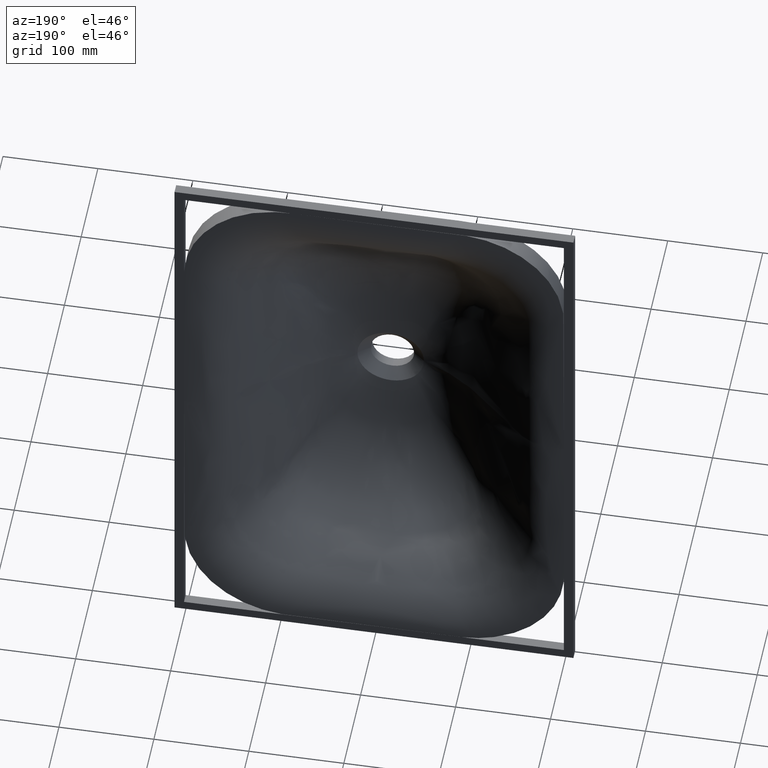
[diagram: clean part render]
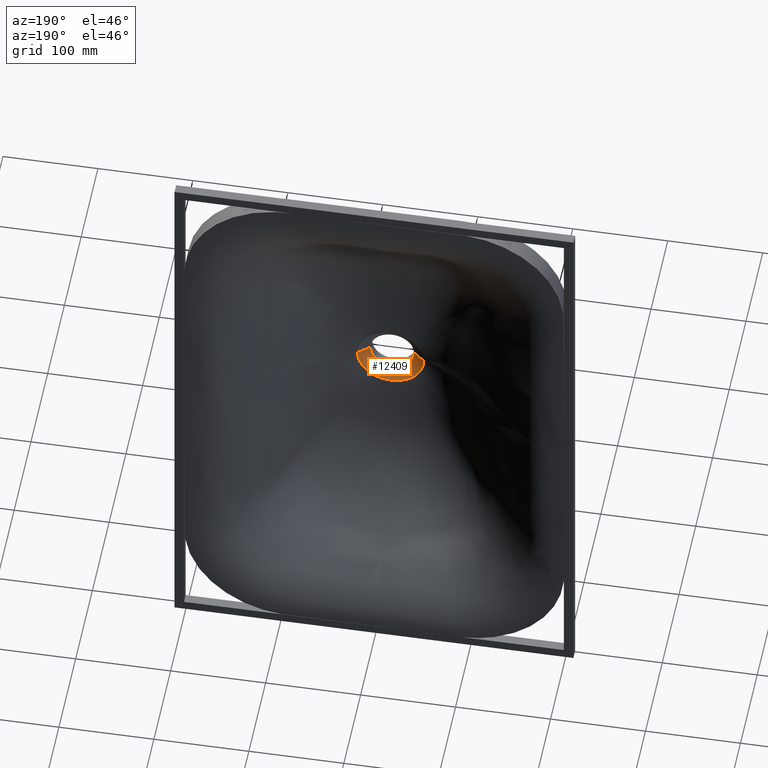
[diagram: same view with one face highlighted and labeled with its STEP entity id]
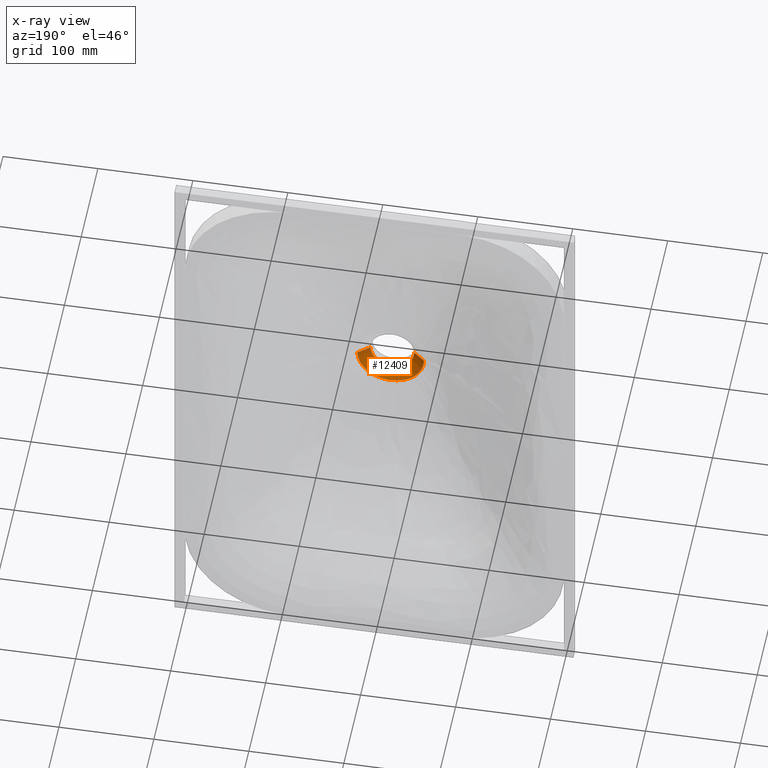
[diagram: x-ray of the same camera — body ghosted, the highlighted face saturated]
A machine part, auxiliary view. The second image highlights one B-rep face of the part: STEP entity #12409.
The next image is the same camera in x-ray: the body ghosted, the highlighted face saturated — about 0% of this face is hidden behind the body in this view.
In plain terms, the highlighted face is a freeform B-spline surface patch.
Its self-contained STEP definition (entity closure, byte-faithful):
#54 = CARTESIAN_POINT ( 'NONE',  ( -14.87605336912653100, 10.38404328497316300, -17.54556130888461900 ) ) ;
#201 = CARTESIAN_POINT ( 'NONE',  ( -35.00000000000000000, 19.99999999999999600, -1.089623183347932000E-014 ) ) ;
#610 = CARTESIAN_POINT ( 'NONE',  ( -34.92516223613242200, 19.99999999999999600, -2.329734954493456000 ) ) ;
#1048 = CARTESIAN_POINT ( 'NONE',  ( 23.05109930967709500, 20.00000000000000400, -26.45923029894232300 ) ) ;
#1116 = B_SPLINE_CURVE_WITH_KNOTS ( 'NONE', 3,
 ( #201, #8493, #3553, #3788 ),
 .UNSPECIFIED., .F., .F.,
 ( 4, 4 ),
 ( 0.0000000000000000000, 0.9600000000000019600 ),
 .UNSPECIFIED. ) ;
#1447 = B_SPLINE_CURVE_WITH_KNOTS ( 'NONE', 3,
 ( #9905, #12322, #13770, #610, #1965, #7893, #8209, #11202, #13090, #10845, #10781, #10993, #11160, #13142, #8520, #10901, #4237, #9383, #11380, #6945, #12167, #13283, #13375, #13126, #13406, #13652, #2059, #1899, #5665, #1811, #1048, #1882, #13846, #11906, #5831, #11400, #10126, #10881 ),
 .UNSPECIFIED., .F., .F.,
 ( 4, 1, 1, 1, 1, 2, 2, 1, 1, 1, 1, 2, 2, 2, 1, 2, 2, 2, 1, 1, 1, 1, 2, 2, 1, 4 ),
 ( 0.0000000000000000000, 0.005219345127828849300, 0.01043869025565769900, 0.01565803538348654900, 0.02087738051131539700, 0.1043869025565773600, 0.1197851551098226000, 0.1364424591954516700, 0.1524702375148888600, 0.1684980158343260000, 0.1806972684971683300, 0.2005535724732003000, 0.2112798522621409400, 0.2187608823973335700, 0.2500000000000004400, 0.2812391176026669000, 0.2887201477378579200, 0.2994464275268002300, 0.3193027315028322300, 0.3315019841656745000, 0.3475297624851116900, 0.3635575408045489400, 0.3802148448901762600, 0.3956130974434232100, 0.4166666666666670200, 0.5000000000000004400 ),
 .UNSPECIFIED. ) ;
#1661 = CARTESIAN_POINT ( 'NONE',  ( -1.520526338073602000, 10.40682704675463400, -23.00000000000000400 ) ) ;
#1811 = CARTESIAN_POINT ( 'NONE',  ( 20.29364273303919900, 20.00000000000000400, -28.60967737590167900 ) ) ;
#1882 = CARTESIAN_POINT ( 'NONE',  ( 24.73673486796249000, 20.00000000000000400, -24.83878249049592000 ) ) ;
#1899 = CARTESIAN_POINT ( 'NONE',  ( 14.45053521951598100, 20.00000000000000700, -31.92012359804177600 ) ) ;
#1965 = CARTESIAN_POINT ( 'NONE',  ( -34.82425212715406100, 20.00000000000000000, -3.490334187089354500 ) ) ;
#2019 = CARTESIAN_POINT ( 'NONE',  ( 3.469446951953613800E-015, 10.40682704675463200, -22.99999999999999300 ) ) ;
#2059 = CARTESIAN_POINT ( 'NONE',  ( 12.24525811237429600, 20.00000000000000400, -32.79025982053833800 ) ) ;
#2561 = CARTESIAN_POINT ( 'NONE',  ( -8.090737188525036300, 10.41453552083890000, -21.53330622018333800 ) ) ;
#2664 = CARTESIAN_POINT ( 'NONE',  ( -18.27944255997595500, 10.38621837153144300, -14.04048836935353600 ) ) ;
#2966 = CARTESIAN_POINT ( 'NONE',  ( -5.939692189061752000, 10.41498942915473700, -22.23253628308002700 ) ) ;
#3413 = CARTESIAN_POINT ( 'NONE',  ( -11.51829571596967300, 10.40012292643967800, -19.96451744201422700 ) ) ;
#3553 = CARTESIAN_POINT ( 'NONE',  ( -26.99999999999999600, 13.59999999999998000, -3.537534848385696000E-015 ) ) ;
#3788 = CARTESIAN_POINT ( 'NONE',  ( -23.00000000000000000, 10.39999999999998100, -6.352210424329619400E-017 ) ) ;
#3832 = FACE_OUTER_BOUND ( 'NONE', #11415, .T. ) ;
#4187 = CARTESIAN_POINT ( 'NONE',  ( -22.50000000000002800, 9.999999999999998200, 3.794707603699265500E-016 ) ) ;
#4196 = CARTESIAN_POINT ( 'NONE',  ( -22.50000000000002500, 9.999999999999998200, 0.2498776765180204000 ) ) ;
#4198 = CARTESIAN_POINT ( 'NONE',  ( -22.49117120124113000, 9.999999999999994700, 0.7494992089919626500 ) ) ;
#4210 = CARTESIAN_POINT ( 'NONE',  ( -22.45189000894226800, 9.999999999999994700, 1.497686756460075500 ) ) ;
#4213 = CARTESIAN_POINT ( 'NONE',  ( -22.38701922459902600, 9.999999999999992900, 2.243786263128870300 ) ) ;
#4225 = CARTESIAN_POINT ( 'NONE',  ( -21.84694737897012100, 9.999999999999985800, 6.702795321006648000 ) ) ;
#4234 = CARTESIAN_POINT ( 'NONE',  ( -20.14751024514885500, 10.00000000000000200, 10.73227079433559800 ) ) ;
#4236 = CARTESIAN_POINT ( 'NONE',  ( -17.36784356892342300, 10.00000000000000200, 14.35142230446554400 ) ) ;
#4237 = CARTESIAN_POINT ( 'NONE',  ( -9.326777061710178200, 19.99999999999999600, -33.71417655550887100 ) ) ;
#4249 = CARTESIAN_POINT ( 'NONE',  ( -16.90902547257071800, 10.00000000000000200, 14.89211900277915400 ) ) ;
#4253 = CARTESIAN_POINT ( 'NONE',  ( -15.90218670083315400, 9.999999999999994700, 15.96778874389014800 ) ) ;
#4268 = CARTESIAN_POINT ( 'NONE',  ( -14.81856384193536900, 10.00000000000000200, 17.00950519217716900 ) ) ;
#4278 = CARTESIAN_POINT ( 'NONE',  ( -13.04591318552521200, 9.999999999999998200, 18.39193545593680000 ) ) ;
#4279 = CARTESIAN_POINT ( 'NONE',  ( -11.30238107130151300, 9.999999999999998200, 19.48865095668751500 ) ) ;
#4291 = CARTESIAN_POINT ( 'NONE',  ( -9.289629783974584500, 9.999999999999998200, 20.52007945588398700 ) ) ;
#4294 = CARTESIAN_POINT ( 'NONE',  ( -7.871951643669212300, 9.999999999999991100, 21.07945274177465200 ) ) ;
#4312 = CARTESIAN_POINT ( 'NONE',  ( -6.487437217015845200, 10.00000000000000000, 21.53073153960127000 ) ) ;
#4320 = CARTESIAN_POINT ( 'NONE',  ( -5.995785253956527500, 10.00000000000000000, 21.67339921425571700 ) ) ;
#4322 = CARTESIAN_POINT ( 'NONE',  ( -5.153177549929989000, 9.999999999999992900, 21.88792609823093100 ) ) ;
#4334 = CARTESIAN_POINT ( 'NONE',  ( -4.804658468441800800, 9.999999999999994700, 21.96814908895288800 ) ) ;
#4337 = CARTESIAN_POINT ( 'NONE',  ( -2.991163807661372700, 9.999999999999998200, 22.34117684300215200 ) ) ;
#4353 = CARTESIAN_POINT ( 'NONE',  ( -6.635317295611287100E-014, 9.999999999999998200, 22.64213276798199800 ) ) ;
#4363 = CARTESIAN_POINT ( 'NONE',  ( 2.991163807661242600, 9.999999999999998200, 22.34117684300215200 ) ) ;
#4365 = CARTESIAN_POINT ( 'NONE',  ( 4.804658468441704000, 10.00000000000000000, 21.96814908895288500 ) ) ;
#4378 = CARTESIAN_POINT ( 'NONE',  ( 5.153177549929917900, 10.00000000000000200, 21.88792609823093100 ) ) ;
#4381 = CARTESIAN_POINT ( 'NONE',  ( 5.995785253956472400, 10.00000000000000400, 21.67339921425571300 ) ) ;
#4397 = CARTESIAN_POINT ( 'NONE',  ( 6.487437217015778600, 10.00000000000000200, 21.53073153960127000 ) ) ;
#4404 = CARTESIAN_POINT ( 'NONE',  ( 7.871951643669123500, 10.00000000000000200, 21.07945274177463400 ) ) ;
#4406 = CARTESIAN_POINT ( 'NONE',  ( 9.289629783974486800, 10.00000000000000200, 20.52007945588399500 ) ) ;
#4420 = CARTESIAN_POINT ( 'NONE',  ( 11.30238107130140300, 10.00000000000000200, 19.48865095668752500 ) ) ;
#4423 = CARTESIAN_POINT ( 'NONE',  ( 13.04591318552511200, 10.00000000000000200, 18.39193545593680700 ) ) ;
#4439 = CARTESIAN_POINT ( 'NONE',  ( 14.81856384193527100, 10.00000000000000500, 17.00950519217717300 ) ) ;
#4446 = CARTESIAN_POINT ( 'NONE',  ( 15.90218670083309100, 10.00000000000000200, 15.96778874389014100 ) ) ;
#4448 = CARTESIAN_POINT ( 'NONE',  ( 16.90902547257063300, 10.00000000000000200, 14.89211900277915000 ) ) ;
#4461 = CARTESIAN_POINT ( 'NONE',  ( 17.36784356892332000, 9.999999999999998200, 14.35142230446554000 ) ) ;
#4464 = CARTESIAN_POINT ( 'NONE',  ( 18.39227177682828400, 10.00000000000000900, 13.01760738076635000 ) ) ;
#4480 = CARTESIAN_POINT ( 'NONE',  ( 21.08426791930852300, 10.00000000000000200, 8.987161268467058800 ) ) ;
#4485 = CARTESIAN_POINT ( 'NONE',  ( 23.63019613094665400, 10.00000000000000200, 3.469446951953614200E-015 ) ) ;
#4497 = CARTESIAN_POINT ( 'NONE',  ( 21.08426791930850900, 10.00000000000000200, -8.987161268467023200 ) ) ;
#4501 = CARTESIAN_POINT ( 'NONE',  ( 18.39227177682828400, 10.00000000000000900, -13.01760738076629300 ) ) ;
#4515 = CARTESIAN_POINT ( 'NONE',  ( 17.36784356892329100, 9.999999999999998200, -14.35142230446556900 ) ) ;
#4522 = CARTESIAN_POINT ( 'NONE',  ( 16.90902547257054400, 10.00000000000000400, -14.89211900277923900 ) ) ;
#4540 = CARTESIAN_POINT ( 'NONE',  ( 15.90218670083298100, 10.00000000000000200, -15.96778874389022500 ) ) ;
#4543 = CARTESIAN_POINT ( 'NONE',  ( 14.81856384193523700, 10.00000000000000200, -17.00950519217716900 ) ) ;
#4554 = CARTESIAN_POINT ( 'NONE',  ( 13.04591318552513900, 10.00000000000000200, -18.39193545593677500 ) ) ;
#4564 = CARTESIAN_POINT ( 'NONE',  ( 11.30238107130143800, 10.00000000000000500, -19.48865095668749700 ) ) ;
#4579 = CARTESIAN_POINT ( 'NONE',  ( 9.289629783974517000, 10.00000000000000400, -20.52007945588395900 ) ) ;
#4582 = CARTESIAN_POINT ( 'NONE',  ( 7.871951643669143900, 10.00000000000000200, -21.07945274177462000 ) ) ;
#4594 = CARTESIAN_POINT ( 'NONE',  ( 6.487437217015736800, 9.999999999999998200, -21.53073153960125900 ) ) ;
#4616 = CARTESIAN_POINT ( 'NONE',  ( 5.995785253956372100, 9.999999999999998200, -21.67339921425572800 ) ) ;
#4619 = CARTESIAN_POINT ( 'NONE',  ( 5.153177549929825600, 10.00000000000000000, -21.88792609823092800 ) ) ;
#4631 = CARTESIAN_POINT ( 'NONE',  ( 4.804658468441680000, 10.00000000000000000, -21.96814908895287400 ) ) ;
#4642 = CARTESIAN_POINT ( 'NONE',  ( 2.991163807661296300, 9.999999999999994700, -22.34117684300211700 ) ) ;
#4657 = CARTESIAN_POINT ( 'NONE',  ( -1.734723475976807100E-014, 9.999999999999994700, -22.64213276798196600 ) ) ;
#4659 = CARTESIAN_POINT ( 'NONE',  ( -2.991163807661330900, 9.999999999999998200, -22.34117684300213100 ) ) ;
#4671 = CARTESIAN_POINT ( 'NONE',  ( -4.804658468441809700, 9.999999999999996400, -21.96814908895287400 ) ) ;
#4681 = CARTESIAN_POINT ( 'NONE',  ( -5.153177549930035200, 9.999999999999994700, -21.88792609823089900 ) ) ;
#4695 = CARTESIAN_POINT ( 'NONE',  ( -5.995785253956578100, 9.999999999999998200, -21.67339921425569200 ) ) ;
#4697 = CARTESIAN_POINT ( 'NONE',  ( -6.487437217015864700, 9.999999999999994700, -21.53073153960125200 ) ) ;
#4711 = CARTESIAN_POINT ( 'NONE',  ( -7.871951643669196300, 9.999999999999994700, -21.07945274177464200 ) ) ;
#4719 = CARTESIAN_POINT ( 'NONE',  ( -9.289629783974563200, 9.999999999999994700, -20.52007945588398000 ) ) ;
#4735 = CARTESIAN_POINT ( 'NONE',  ( -11.30238107130149300, 9.999999999999998200, -19.48865095668750100 ) ) ;
#4737 = CARTESIAN_POINT ( 'NONE',  ( -13.04591318552519200, 9.999999999999994700, -18.39193545593680000 ) ) ;
#4750 = CARTESIAN_POINT ( 'NONE',  ( -14.81856384193533700, 9.999999999999994700, -17.00950519217715500 ) ) ;
#4752 = CARTESIAN_POINT ( 'NONE',  ( -15.90218670083313100, 9.999999999999998200, -15.96778874389014800 ) ) ;
#4762 = CARTESIAN_POINT ( 'NONE',  ( -16.90902547257070100, 9.999999999999996400, -14.89211900277914500 ) ) ;
#4778 = CARTESIAN_POINT ( 'NONE',  ( -17.36784356892337300, 9.999999999999998200, -14.35142230446553000 ) ) ;
#4780 = CARTESIAN_POINT ( 'NONE',  ( -20.14751024514892600, 9.999999999999994700, -10.73227079433563000 ) ) ;
#4789 = CARTESIAN_POINT ( 'NONE',  ( -21.84694737897022400, 10.00000000000000200, -6.702795321006649800 ) ) ;
#4792 = CARTESIAN_POINT ( 'NONE',  ( -22.38701922459907200, 10.00000000000000000, -2.243786263128862800 ) ) ;
#4800 = CARTESIAN_POINT ( 'NONE',  ( -22.45189000894230000, 9.999999999999998200, -1.497686756460071100 ) ) ;
#4818 = CARTESIAN_POINT ( 'NONE',  ( -22.49117120124114800, 9.999999999999998200, -0.7494992089919622100 ) ) ;
#4821 = CARTESIAN_POINT ( 'NONE',  ( -22.50000000000003200, 9.999999999999998200, -0.2498776765180196200 ) ) ;
#4832 = CARTESIAN_POINT ( 'NONE',  ( -22.50000000000002800, 9.999999999999998200, 3.794707603699265500E-016 ) ) ;
#4835 = CARTESIAN_POINT ( 'NONE',  ( -26.66666666666667900, 13.33333333333332900, -3.388131789017201400E-015 ) ) ;
#4845 = CARTESIAN_POINT ( 'NONE',  ( -26.66666666666667500, 13.33333333333332700, 0.2961513203176501200 ) ) ;
#4864 = CARTESIAN_POINT ( 'NONE',  ( -26.65620290517465900, 13.33333333333332500, 0.8882953588052855400 ) ) ;
#4866 = CARTESIAN_POINT ( 'NONE',  ( -26.60964741800564300, 13.33333333333332500, 1.775036155804530400 ) ) ;
#4880 = CARTESIAN_POINT ( 'NONE',  ( -26.53276352545069400, 13.33333333333332500, 2.659302237782361600 ) ) ;
#4882 = CARTESIAN_POINT ( 'NONE',  ( -25.89267837507571100, 13.33333333333331600, 7.944053713785653100 ) ) ;
#4892 = CARTESIAN_POINT ( 'NONE',  ( -23.87853066091714300, 13.33333333333333700, 12.71972834884218500 ) ) ;
#4908 = CARTESIAN_POINT ( 'NONE',  ( -20.58411089650180500, 13.33333333333333000, 17.00909310158880000 ) ) ;
#4910 = CARTESIAN_POINT ( 'NONE',  ( -20.04032648600971500, 13.33333333333333000, 17.64991881810863100 ) ) ;
#4918 = CARTESIAN_POINT ( 'NONE',  ( -18.84703608987631200, 13.33333333333332000, 18.92478665942536200 ) ) ;
#4921 = CARTESIAN_POINT ( 'NONE',  ( -17.56274233118264000, 13.33333333333332900, 20.15941356109886200 ) ) ;
#4931 = EDGE_CURVE ( 'NONE', #11402, #6466, #1116, .T. ) ;
#4951 = CARTESIAN_POINT ( 'NONE',  ( -15.46182303469653400, 13.33333333333332300, 21.79784942925842400 ) ) ;
#4954 = CARTESIAN_POINT ( 'NONE',  ( -13.39541460302399600, 13.33333333333332500, 23.09766039311113100 ) ) ;
#4964 = CARTESIAN_POINT ( 'NONE',  ( -11.00993159582171500, 13.33333333333332500, 24.32009416993658100 ) ) ;
#4967 = CARTESIAN_POINT ( 'NONE',  ( -9.329720466570901000, 13.33333333333331400, 24.98305510136254500 ) ) ;
#4993 = CARTESIAN_POINT ( 'NONE',  ( -7.688814479426171500, 13.33333333333332500, 25.51790404693484100 ) ) ;
#4996 = CARTESIAN_POINT ( 'NONE',  ( -7.106115856541054900, 13.33333333333332700, 25.68699166134011600 ) ) ;
#5006 = CARTESIAN_POINT ( 'NONE',  ( -6.107469688805896800, 13.33333333333331600, 25.94124574605147500 ) ) ;
#5009 = CARTESIAN_POINT ( 'NONE',  ( -5.694410036671746900, 13.33333333333332000, 26.03632484616639100 ) ) ;
#5035 = CARTESIAN_POINT ( 'NONE',  ( -3.545083031302350500, 13.33333333333332500, 26.47843181392848100 ) ) ;
#5037 = CARTESIAN_POINT ( 'NONE',  ( -6.245004513516505500E-014, 13.33333333333332300, 26.83512031760829700 ) ) ;
#5050 = CARTESIAN_POINT ( 'NONE',  ( 3.545083031302228300, 13.33333333333332100, 26.47843181392848400 ) ) ;
#5054 = CARTESIAN_POINT ( 'NONE',  ( 5.694410036671666100, 13.33333333333332700, 26.03632484616640100 ) ) ;
#5076 = CARTESIAN_POINT ( 'NONE',  ( 6.107469688805845300, 13.33333333333333000, 25.94124574605148900 ) ) ;
#5078 = CARTESIAN_POINT ( 'NONE',  ( 7.106115856541020300, 13.33333333333333200, 25.68699166134011900 ) ) ;
#5088 = CARTESIAN_POINT ( 'NONE',  ( 7.688814479426123500, 13.33333333333333000, 25.51790404693485900 ) ) ;
#5092 = CARTESIAN_POINT ( 'NONE',  ( 9.329720466570830000, 13.33333333333333000, 24.98305510136255900 ) ) ;
#5096 = VERTEX_POINT ( 'NONE', #9933 ) ;
#5111 = CARTESIAN_POINT ( 'NONE',  ( 11.00993159582163000, 13.33333333333333200, 24.32009416993659900 ) ) ;
#5124 = CARTESIAN_POINT ( 'NONE',  ( 13.39541460302390300, 13.33333333333333400, 23.09766039311115200 ) ) ;
#5126 = CARTESIAN_POINT ( 'NONE',  ( 15.46182303469644900, 13.33333333333333200, 21.79784942925845200 ) ) ;
#5139 = CARTESIAN_POINT ( 'NONE',  ( 17.56274233118256200, 13.33333333333333600, 20.15941356109886900 ) ) ;
#5143 = CARTESIAN_POINT ( 'NONE',  ( 18.84703608987626900, 13.33333333333333000, 18.92478665942535400 ) ) ;
#5156 = CARTESIAN_POINT ( 'NONE',  ( 35.00000000000000000, 20.00000000000000400, 1.040834085586084300E-014 ) ) ;
#5161 = CARTESIAN_POINT ( 'NONE',  ( 20.04032648600965800, 13.33333333333333000, 17.64991881810862400 ) ) ;
#5170 = CARTESIAN_POINT ( 'NONE',  ( 20.58411089650171600, 13.33333333333332900, 17.00909310158879600 ) ) ;
#5172 = CARTESIAN_POINT ( 'NONE',  ( 21.79824803179652200, 13.33333333333334100, 15.42827541424159500 ) ) ;
#5183 = CARTESIAN_POINT ( 'NONE',  ( 24.98876197843974700, 13.33333333333333000, 10.65145039225725300 ) ) ;
#5186 = CARTESIAN_POINT ( 'NONE',  ( 28.00615837741827400, 13.33333333333333200, 3.469446951953614200E-015 ) ) ;
#5205 = CARTESIAN_POINT ( 'NONE',  ( 24.98876197843974700, 13.33333333333333600, -10.65145039225721600 ) ) ;
#5215 = CARTESIAN_POINT ( 'NONE',  ( 21.79824803179652200, 13.33333333333334600, -15.42827541424152400 ) ) ;
#5218 = CARTESIAN_POINT ( 'NONE',  ( 20.58411089650169100, 13.33333333333333400, -17.00909310158884600 ) ) ;
#5229 = CARTESIAN_POINT ( 'NONE',  ( 20.04032648600954800, 13.33333333333334100, -17.64991881810873800 ) ) ;
#5232 = CARTESIAN_POINT ( 'NONE',  ( 18.84703608987614100, 13.33333333333333700, -18.92478665942545400 ) ) ;
#5249 = CARTESIAN_POINT ( 'NONE',  ( 17.56274233118252000, 13.33333333333333600, -20.15941356109888700 ) ) ;
#5259 = CARTESIAN_POINT ( 'NONE',  ( 15.46182303469648800, 13.33333333333333700, -21.79784942925841000 ) ) ;
#5261 = CARTESIAN_POINT ( 'NONE',  ( 13.39541460302395000, 13.33333333333334100, -23.09766039311112000 ) ) ;
#5273 = CARTESIAN_POINT ( 'NONE',  ( 11.00993159582166700, 13.33333333333333700, -24.32009416993656400 ) ) ;
#5276 = CARTESIAN_POINT ( 'NONE',  ( 9.329720466570858400, 13.33333333333333400, -24.98305510136252700 ) ) ;
#5294 = CARTESIAN_POINT ( 'NONE',  ( 7.688814479426077300, 13.33333333333333200, -25.51790404693485200 ) ) ;
#5304 = CARTESIAN_POINT ( 'NONE',  ( 7.106115856540904800, 13.33333333333333200, -25.68699166134014400 ) ) ;
#5306 = CARTESIAN_POINT ( 'NONE',  ( 6.107469688805738700, 13.33333333333333600, -25.94124574605149600 ) ) ;
#5320 = CARTESIAN_POINT ( 'NONE',  ( 5.694410036671639500, 13.33333333333333700, -26.03632484616639800 ) ) ;
#5323 = CARTESIAN_POINT ( 'NONE',  ( 3.545083031302295000, 13.33333333333333000, -26.47843181392845900 ) ) ;
#5341 = CARTESIAN_POINT ( 'NONE',  ( -3.324886662288879200E-015, 13.33333333333332900, -26.83512031760827200 ) ) ;
#5349 = CARTESIAN_POINT ( 'NONE',  ( -3.545083031302301600, 13.33333333333333200, -26.47843181392846600 ) ) ;
#5352 = CARTESIAN_POINT ( 'NONE',  ( -5.694410036671758500, 13.33333333333332900, -26.03632484616638000 ) ) ;
#5364 = CARTESIAN_POINT ( 'NONE',  ( -6.107469688805951900, 13.33333333333332300, -25.94124574605145400 ) ) ;
#5367 = CARTESIAN_POINT ( 'NONE',  ( -7.106115856541112700, 13.33333333333332700, -25.68699166134008700 ) ) ;
#5382 = CARTESIAN_POINT ( 'NONE',  ( -7.688814479426193700, 13.33333333333332300, -25.51790404693482700 ) ) ;
#5388 = CARTESIAN_POINT ( 'NONE',  ( -9.329720466570885100, 13.33333333333332300, -24.98305510136254500 ) ) ;
#5390 = CARTESIAN_POINT ( 'NONE',  ( -11.00993159582169100, 13.33333333333332300, -24.32009416993657800 ) ) ;
#5401 = CARTESIAN_POINT ( 'NONE',  ( -13.39541460302397600, 13.33333333333332700, -23.09766039311112400 ) ) ;
#5404 = CARTESIAN_POINT ( 'NONE',  ( -15.46182303469651000, 13.33333333333332300, -21.79784942925843800 ) ) ;
#5421 = CARTESIAN_POINT ( 'NONE',  ( -17.56274233118261600, 13.33333333333332300, -20.15941356109885500 ) ) ;
#5427 = CARTESIAN_POINT ( 'NONE',  ( -18.84703608987629400, 13.33333333333332900, -18.92478665942535400 ) ) ;
#5429 = CARTESIAN_POINT ( 'NONE',  ( -20.04032648600969300, 13.33333333333332700, -17.64991881810862800 ) ) ;
#5443 = CARTESIAN_POINT ( 'NONE',  ( -20.58411089650176600, 13.33333333333332900, -17.00909310158878500 ) ) ;
#5446 = CARTESIAN_POINT ( 'NONE',  ( -23.87853066091724200, 13.33333333333332300, -12.71972834884223300 ) ) ;
#5462 = CARTESIAN_POINT ( 'NONE',  ( -25.89267837507580000, 13.33333333333333400, -7.944053713785663700 ) ) ;
#5469 = CARTESIAN_POINT ( 'NONE',  ( -26.53276352545073300, 13.33333333333333200, -2.659302237782360300 ) ) ;
#5488 = CARTESIAN_POINT ( 'NONE',  ( -26.60964741800567200, 13.33333333333333000, -1.775036155804532900 ) ) ;
#5491 = CARTESIAN_POINT ( 'NONE',  ( -26.65620290517467700, 13.33333333333333200, -0.8882953588052927600 ) ) ;
#5505 = CARTESIAN_POINT ( 'NONE',  ( -26.66666666666668200, 13.33333333333333000, -0.2961513203176569000 ) ) ;
#5513 = CARTESIAN_POINT ( 'NONE',  ( -26.66666666666667900, 13.33333333333332900, -3.388131789017201400E-015 ) ) ;
#5532 = CARTESIAN_POINT ( 'NONE',  ( -30.83333333333334300, 16.66666666666666400, -5.177065373618283700E-015 ) ) ;
#5535 = CARTESIAN_POINT ( 'NONE',  ( -30.83333333333334300, 16.66666666666666400, 0.3424249641172815700 ) ) ;
#5546 = CARTESIAN_POINT ( 'NONE',  ( -30.82123460910819900, 16.66666666666666100, 1.027091508618609900 ) ) ;
#5553 = CARTESIAN_POINT ( 'NONE',  ( -30.76740482706902900, 16.66666666666666100, 2.052385555148986000 ) ) ;
#5568 = CARTESIAN_POINT ( 'NONE',  ( -30.67850782630237200, 16.66666666666665700, 3.074818212435852500 ) ) ;
#5571 = CARTESIAN_POINT ( 'NONE',  ( -29.93840937118130800, 16.66666666666665000, 9.185312106564653700 ) ) ;
#5586 = CARTESIAN_POINT ( 'NONE',  ( -27.60955107668544200, 16.66666666666667900, 14.70718590334875800 ) ) ;
#5598 = CARTESIAN_POINT ( 'NONE',  ( -23.80037822408018800, 16.66666666666667500, 19.66676389871204500 ) ) ;
#5613 = CARTESIAN_POINT ( 'NONE',  ( -23.17162749944871100, 16.66666666666667500, 20.40771863343809800 ) ) ;
#5615 = CARTESIAN_POINT ( 'NONE',  ( -21.79188547891946500, 16.66666666666666400, 21.88178457496056200 ) ) ;
#5628 = CARTESIAN_POINT ( 'NONE',  ( -20.30692082042990900, 16.66666666666667500, 23.30932193002055200 ) ) ;
#5642 = CARTESIAN_POINT ( 'NONE',  ( -17.87773288386784300, 16.66666666666666800, 25.20376340258005100 ) ) ;
#5660 = CARTESIAN_POINT ( 'NONE',  ( -15.48844813474647000, 16.66666666666666800, 26.70666982953473900 ) ) ;
#5662 = CARTESIAN_POINT ( 'NONE',  ( -12.73023340766884100, 16.66666666666667100, 28.12010888398917200 ) ) ;
#5665 = CARTESIAN_POINT ( 'NONE',  ( 17.58148166646898500, 20.00000000000001100, -30.31567926595835900 ) ) ;
#5676 = CARTESIAN_POINT ( 'NONE',  ( -10.78748928947258200, 16.66666666666665700, 28.88665746095043100 ) ) ;
#5689 = CARTESIAN_POINT ( 'NONE',  ( -8.890191741836488900, 16.66666666666667100, 29.50507655426841300 ) ) ;
#5706 = CARTESIAN_POINT ( 'NONE',  ( -8.216446459125570800, 16.66666666666667500, 29.70058410842451100 ) ) ;
#5708 = CARTESIAN_POINT ( 'NONE',  ( -7.061761827681795700, 16.66666666666666100, 29.99456539387201600 ) ) ;
#5721 = CARTESIAN_POINT ( 'NONE',  ( -6.584161604901686900, 16.66666666666666400, 30.10450060337988300 ) ) ;
#5733 = CARTESIAN_POINT ( 'NONE',  ( -4.099002254943322900, 16.66666666666667100, 30.61568678485479800 ) ) ;
#5753 = CARTESIAN_POINT ( 'NONE',  ( -5.160802341031001100E-014, 16.66666666666667100, 31.02810786723458800 ) ) ;
#5755 = CARTESIAN_POINT ( 'NONE',  ( 4.099002254943221700, 16.66666666666667100, 30.61568678485480500 ) ) ;
#5765 = CARTESIAN_POINT ( 'NONE',  ( 6.584161604901633600, 16.66666666666667100, 30.10450060337989700 ) ) ;
#5767 = CARTESIAN_POINT ( 'NONE',  ( 7.061761827681781500, 16.66666666666667500, 29.99456539387203000 ) ) ;
#5779 = CARTESIAN_POINT ( 'NONE',  ( 8.216446459125576100, 16.66666666666667900, 29.70058410842451100 ) ) ;
#5798 = CARTESIAN_POINT ( 'NONE',  ( 8.890191741836476400, 16.66666666666667500, 29.50507655426842700 ) ) ;
#5800 = CARTESIAN_POINT ( 'NONE',  ( 10.78748928947254600, 16.66666666666667500, 28.88665746095046300 ) ) ;
#5811 = CARTESIAN_POINT ( 'NONE',  ( 12.73023340766878800, 16.66666666666667500, 28.12010888398919000 ) ) ;
#5813 = CARTESIAN_POINT ( 'NONE',  ( 15.48844813474641800, 16.66666666666667500, 26.70666982953476100 ) ) ;
#5825 = CARTESIAN_POINT ( 'NONE',  ( 17.87773288386780400, 16.66666666666667100, 25.20376340258008000 ) ) ;
#5831 = CARTESIAN_POINT ( 'NONE',  ( 28.61020054173302200, 20.00000000000001800, -20.24961148119197700 ) ) ;
#5853 = CARTESIAN_POINT ( 'NONE',  ( 20.30692082042987700, 16.66666666666667900, 23.30932193002055900 ) ) ;
#5855 = CARTESIAN_POINT ( 'NONE',  ( 21.79188547891946800, 16.66666666666667100, 21.88178457496056600 ) ) ;
#5866 = CARTESIAN_POINT ( 'NONE',  ( 23.17162749944870000, 16.66666666666667100, 20.40771863343809400 ) ) ;
#5869 = CARTESIAN_POINT ( 'NONE',  ( 23.80037822408014100, 16.66666666666666800, 19.66676389871204500 ) ) ;
#5883 = CARTESIAN_POINT ( 'NONE',  ( 25.20422428676478400, 16.66666666666668200, 17.83894344771684400 ) ) ;
#5907 = CARTESIAN_POINT ( 'NONE',  ( 28.89325603757098200, 16.66666666666667100, 12.31573951604744500 ) ) ;
#5909 = CARTESIAN_POINT ( 'NONE',  ( 32.38212062388990400, 16.66666666666667100, 6.071532165918824800E-015 ) ) ;
#5921 = CARTESIAN_POINT ( 'NONE',  ( 28.89325603757098200, 16.66666666666667100, -12.31573951604740100 ) ) ;
#5924 = CARTESIAN_POINT ( 'NONE',  ( 25.20422428676477700, 16.66666666666668200, -17.83894344771674400 ) ) ;
#5934 = CARTESIAN_POINT ( 'NONE',  ( 23.80037822408010600, 16.66666666666666800, -19.66676389871210900 ) ) ;
#5954 = CARTESIAN_POINT ( 'NONE',  ( 23.17162749944856900, 16.66666666666667500, -20.40771863343822900 ) ) ;
#5957 = CARTESIAN_POINT ( 'NONE',  ( 21.79188547891931900, 16.66666666666667100, -21.88178457496068000 ) ) ;
#5965 = CARTESIAN_POINT ( 'NONE',  ( 20.30692082042980200, 16.66666666666667100, -23.30932193002059800 ) ) ;
#5968 = CARTESIAN_POINT ( 'NONE',  ( 17.87773288386783900, 16.66666666666667100, -25.20376340258004100 ) ) ;
#6000 = CARTESIAN_POINT ( 'NONE',  ( 15.48844813474646600, 16.66666666666667900, -26.70666982953473200 ) ) ;
#6003 = CARTESIAN_POINT ( 'NONE',  ( 12.73023340766882500, 16.66666666666667500, -28.12010888398916500 ) ) ;
#6016 = CARTESIAN_POINT ( 'NONE',  ( 10.78748928947257600, 16.66666666666667100, -28.88665746095042800 ) ) ;
#6020 = CARTESIAN_POINT ( 'NONE',  ( 8.890191741836424900, 16.66666666666666800, -29.50507655426843500 ) ) ;
#6050 = CARTESIAN_POINT ( 'NONE',  ( 8.216446459125442900, 16.66666666666666800, -29.70058410842455700 ) ) ;
#6053 = CARTESIAN_POINT ( 'NONE',  ( 7.061761827681658100, 16.66666666666667100, -29.99456539387205500 ) ) ;
#6066 = CARTESIAN_POINT ( 'NONE',  ( 6.584161604901604300, 16.66666666666666800, -30.10450060337990800 ) ) ;
#6069 = CARTESIAN_POINT ( 'NONE',  ( 4.099002254943300700, 16.66666666666666100, -30.61568678485479100 ) ) ;
#6101 = CARTESIAN_POINT ( 'NONE',  ( 1.850371707708594400E-014, 16.66666666666665700, -31.02810786723457800 ) ) ;
#6104 = CARTESIAN_POINT ( 'NONE',  ( -4.099002254943263400, 16.66666666666666800, -30.61568678485480200 ) ) ;
#6117 = CARTESIAN_POINT ( 'NONE',  ( -6.584161604901697600, 16.66666666666666100, -30.10450060337988600 ) ) ;
#6121 = CARTESIAN_POINT ( 'NONE',  ( -7.061761827681857900, 16.66666666666665700, -29.99456539387200500 ) ) ;
#6130 = EDGE_CURVE ( 'NONE', #7198, #6466, #6611, .T. ) ;
#6154 = CARTESIAN_POINT ( 'NONE',  ( -8.216446459125638300, 16.66666666666666100, -29.70058410842448300 ) ) ;
#6156 = CARTESIAN_POINT ( 'NONE',  ( -8.890191741836512000, 16.66666666666665700, -29.50507655426840600 ) ) ;
#6166 = CARTESIAN_POINT ( 'NONE',  ( -10.78748928947256400, 16.66666666666666100, -28.88665746095045300 ) ) ;
#6171 = CARTESIAN_POINT ( 'NONE',  ( -12.73023340766880700, 16.66666666666666100, -28.12010888398918200 ) ) ;
#6191 = CARTESIAN_POINT ( 'NONE',  ( -15.48844813474644700, 16.66666666666666400, -26.70666982953475000 ) ) ;
#6205 = CARTESIAN_POINT ( 'NONE',  ( -17.87773288386781800, 16.66666666666666100, -25.20376340258006900 ) ) ;
#6207 = CARTESIAN_POINT ( 'NONE',  ( -20.30692082042988400, 16.66666666666666100, -23.30932193002056300 ) ) ;
#6221 = CARTESIAN_POINT ( 'NONE',  ( -21.79188547891945400, 16.66666666666666400, -21.88178457496055500 ) ) ;
#6225 = CARTESIAN_POINT ( 'NONE',  ( -23.17162749944869300, 16.66666666666666400, -20.40771863343810100 ) ) ;
#6245 = CARTESIAN_POINT ( 'NONE',  ( -23.80037822408015900, 16.66666666666666400, -19.66676389871203400 ) ) ;
#6256 = CARTESIAN_POINT ( 'NONE',  ( -27.60955107668555200, 16.66666666666666100, -14.70718590334883300 ) ) ;
#6258 = CARTESIAN_POINT ( 'NONE',  ( -29.93840937118136800, 16.66666666666667100, -9.185312106564675000 ) ) ;
#6260 = CARTESIAN_POINT ( 'NONE',  ( -22.26148096549616500, 10.41546971858504600, -5.977871072561548300 ) ) ;
#6275 = CARTESIAN_POINT ( 'NONE',  ( -30.67850782630240000, 16.66666666666666800, -3.074818212435855200 ) ) ;
#6278 = CARTESIAN_POINT ( 'NONE',  ( -30.76740482706905100, 16.66666666666666800, -2.052385555148992200 ) ) ;
#6281 = B_SPLINE_CURVE_WITH_KNOTS ( 'NONE', 3,
 ( #8099, #7330, #7270, #7267, #7248, #7246, #7223, #7212, #7210, #7189, #7186, #7166, #7157, #7140, #7089, #7056, #7054, #7040, #7018, #7008, #7006, #6994, #6992, #6959, #6947, #6944, #6924, #6914, #6912, #6898, #6880, #6868, #6866, #6814 ),
 .UNSPECIFIED., .F., .F.,
 ( 4, 2, 2, 2, 2, 2, 2, 2, 2, 2, 2, 2, 2, 2, 2, 2, 4 ),
 ( 0.1076090908135143400, 0.1098483801035952000, 0.1120876693936760500, 0.1143269586837569000, 0.1154466033287973500, 0.1165662479738377700, 0.1210448265539995100, 0.1232841158440803600, 0.1244037604891208000, 0.1255234051341612400, 0.1300019837143230100, 0.1311216283593634700, 0.1322412730044039100, 0.1344805622944848000, 0.1389591408746465600, 0.1411984301647274700, 0.1434377194548083500 ),
 .UNSPECIFIED. ) ;
#6297 = CARTESIAN_POINT ( 'NONE',  ( -30.82123460910821000, 16.66666666666666800, -1.027091508618620800 ) ) ;
#6309 = CARTESIAN_POINT ( 'NONE',  ( -30.83333333333334300, 16.66666666666666400, -0.3424249641172920100 ) ) ;
#6311 = CARTESIAN_POINT ( 'NONE',  ( -30.83333333333334300, 16.66666666666666400, -5.177065373618283700E-015 ) ) ;
#6327 = CARTESIAN_POINT ( 'NONE',  ( -35.00000000000000000, 19.99999999999999600, -1.089623183347932000E-014 ) ) ;
#6348 = CARTESIAN_POINT ( 'NONE',  ( -35.00000000000000000, 19.99999999999999600, 0.3886986079169092400 ) ) ;
#6359 = CARTESIAN_POINT ( 'NONE',  ( -34.98626631304173200, 19.99999999999998900, 1.165887658431930400 ) ) ;
#6360 = CARTESIAN_POINT ( 'NONE',  ( -34.92516223613240800, 19.99999999999998900, 2.329734954493439100 ) ) ;
#6375 = CARTESIAN_POINT ( 'NONE',  ( -34.82425212715404000, 19.99999999999998600, 3.490334187089340700 ) ) ;
#6378 = CARTESIAN_POINT ( 'NONE',  ( -33.98414036728690500, 19.99999999999997200, 10.42657049934365300 ) ) ;
#6407 = CARTESIAN_POINT ( 'NONE',  ( -31.34057149245374100, 20.00000000000000400, 16.69464345785533500 ) ) ;
#6410 = CARTESIAN_POINT ( 'NONE',  ( -27.01664555165857700, 20.00000000000000400, 22.32443469583529700 ) ) ;
#6420 = CARTESIAN_POINT ( 'NONE',  ( -26.30292851288771400, 20.00000000000000400, 23.16551844876757100 ) ) ;
#6424 = CARTESIAN_POINT ( 'NONE',  ( -24.73673486796262100, 19.99999999999998900, 24.83878249049577700 ) ) ;
#6444 = CARTESIAN_POINT ( 'NONE',  ( -23.05109930967717700, 20.00000000000000400, 26.45923029894225200 ) ) ;
#6453 = CARTESIAN_POINT ( 'NONE',  ( -20.29364273303916000, 19.99999999999999600, 28.60967737590169000 ) ) ;
#6456 = CARTESIAN_POINT ( 'NONE',  ( -17.58148166646894900, 19.99999999999999600, 30.31567926595836200 ) ) ;
#6466 = VERTEX_POINT ( 'NONE', #11345 ) ;
#6469 = CARTESIAN_POINT ( 'NONE',  ( -14.45053521951597200, 19.99999999999999600, 31.92012359804177600 ) ) ;
#6472 = CARTESIAN_POINT ( 'NONE',  ( -12.24525811237427300, 19.99999999999998200, 32.79025982053833100 ) ) ;
#6492 = CARTESIAN_POINT ( 'NONE',  ( -10.09156900424681200, 20.00000000000000000, 33.49224906160200300 ) ) ;
#6501 = CARTESIAN_POINT ( 'NONE',  ( -9.326777061710098200, 20.00000000000000000, 33.71417655550892800 ) ) ;
#6503 = CARTESIAN_POINT ( 'NONE',  ( -8.016053966557704400, 19.99999999999998600, 34.04788504169258100 ) ) ;
#6519 = CARTESIAN_POINT ( 'NONE',  ( -7.473913173131633100, 19.99999999999998900, 34.17267636059340000 ) ) ;
#6522 = CARTESIAN_POINT ( 'NONE',  ( -4.652921478584300300, 19.99999999999999600, 34.75294175578114400 ) ) ;
#6537 = CARTESIAN_POINT ( 'NONE',  ( -4.770489558936219500E-014, 19.99999999999999600, 35.22109541686089800 ) ) ;
#6548 = CARTESIAN_POINT ( 'NONE',  ( 4.652921478584208800, 19.99999999999999600, 34.75294175578115800 ) ) ;
#6566 = CARTESIAN_POINT ( 'NONE',  ( 7.473913173131594000, 20.00000000000000000, 34.17267636059342100 ) ) ;
#6569 = CARTESIAN_POINT ( 'NONE',  ( 8.016053966557706200, 20.00000000000000400, 34.04788504169259500 ) ) ;
#6588 = CARTESIAN_POINT ( 'NONE',  ( 9.326777061710121300, 20.00000000000000700, 33.71417655550892800 ) ) ;
#6611 = B_SPLINE_CURVE_WITH_KNOTS ( 'NONE', 3,
 ( #9689, #1661, #13228, #6848, #2966, #9283, #13458, #2561, #6687, #9453, #3413, #12486, #8917, #54, #11248, #8694, #7332, #10107, #2664, #7934, #8988, #12913, #7390, #9564, #6260, #7187, #7983, #9061 ),
 .UNSPECIFIED., .F., .F.,
 ( 4, 2, 2, 2, 2, 2, 2, 2, 2, 2, 2, 2, 2, 4 ),
 ( 4.337848190330957900E-019, 0.004485020436799459600, 0.006727530655199187200, 0.007848785764399051500, 0.008970040873598915700, 0.01345506131039838500, 0.01569757152879812000, 0.01681882663799799000, 0.01794008174719786300, 0.02242510218399737900, 0.02466761240239713500, 0.02691012262079689500, 0.03139514305759640700, 0.03588016349439592700 ),
 .UNSPECIFIED. ) ;
#6615 = CARTESIAN_POINT ( 'NONE',  ( 10.09156900424682000, 20.00000000000000400, 33.49224906160201700 ) ) ;
#6632 = CARTESIAN_POINT ( 'NONE',  ( 12.24525811237425000, 20.00000000000000400, 32.79025982053838800 ) ) ;
#6641 = CARTESIAN_POINT ( 'NONE',  ( 14.45053521951593100, 20.00000000000000400, 31.92012359804179100 ) ) ;
#6674 = CARTESIAN_POINT ( 'NONE',  ( 17.58148166646891800, 20.00000000000000400, 30.31567926595838700 ) ) ;
#6683 = CARTESIAN_POINT ( 'NONE',  ( 20.29364273303913500, 20.00000000000000400, 28.60967737590172500 ) ) ;
#6687 = CARTESIAN_POINT ( 'NONE',  ( -8.446234354397704500, 10.41381077521227800, -21.39636583680675800 ) ) ;
#6703 = CARTESIAN_POINT ( 'NONE',  ( 23.05109930967716300, 20.00000000000001100, 26.45923029894225600 ) ) ;
#6705 = CARTESIAN_POINT ( 'NONE',  ( 24.73673486796264600, 20.00000000000000400, 24.83878249049578100 ) ) ;
#6720 = CARTESIAN_POINT ( 'NONE',  ( 26.30292851288772500, 20.00000000000000400, 23.16551844876756800 ) ) ;
#6728 = CARTESIAN_POINT ( 'NONE',  ( 27.01664555165853800, 19.99999999999999600, 22.32443469583529700 ) ) ;
#6744 = CARTESIAN_POINT ( 'NONE',  ( 28.61020054173302200, 20.00000000000001800, 20.24961148119208700 ) ) ;
#6746 = CARTESIAN_POINT ( 'NONE',  ( 32.79775009670220200, 20.00000000000000400, 13.98002863983764000 ) ) ;
#6761 = CARTESIAN_POINT ( 'NONE',  ( 36.75808287036152700, 20.00000000000000400, 3.469446951953614200E-015 ) ) ;
#6764 = CARTESIAN_POINT ( 'NONE',  ( 22.99999999999999300, 10.40000000000003400, 8.673617379884035500E-015 ) ) ;
#6773 = CARTESIAN_POINT ( 'NONE',  ( 32.79775009670222400, 20.00000000000000400, -13.98002863983759900 ) ) ;
#6776 = CARTESIAN_POINT ( 'NONE',  ( 26.99999999999999600, 13.60000000000001900, 9.776207621214912000E-015 ) ) ;
#6789 = CARTESIAN_POINT ( 'NONE',  ( 28.61020054173302200, 20.00000000000001800, -20.24961148119197700 ) ) ;
#6791 = CARTESIAN_POINT ( 'NONE',  ( 27.01664555165851300, 19.99999999999999600, -22.32443469583538600 ) ) ;
#6809 = CARTESIAN_POINT ( 'NONE',  ( 26.30292851288758600, 20.00000000000000700, -23.16551844876773100 ) ) ;
#6814 = CARTESIAN_POINT ( 'NONE',  ( 3.469446951953613800E-015, 10.40682704675463200, -22.99999999999999300 ) ) ;
#6827 = CARTESIAN_POINT ( 'NONE',  ( 24.73673486796249000, 20.00000000000000400, -24.83878249049592000 ) ) ;
#6844 = CARTESIAN_POINT ( 'NONE',  ( 23.05109930967709500, 20.00000000000000400, -26.45923029894232300 ) ) ;
#6846 = CARTESIAN_POINT ( 'NONE',  ( 20.29364273303919900, 20.00000000000000400, -28.60967737590167900 ) ) ;
#6848 = CARTESIAN_POINT ( 'NONE',  ( -5.213081990501786200, 10.41339374698957700, -22.41389353722641400 ) ) ;
#6864 = CARTESIAN_POINT ( 'NONE',  ( 17.58148166646898500, 20.00000000000001100, -30.31567926595835900 ) ) ;
#6866 = CARTESIAN_POINT ( 'NONE',  ( 0.7591711993544115700, 10.40682704675463400, -22.99999999999999300 ) ) ;
#6868 = CARTESIAN_POINT ( 'NONE',  ( 1.514936326403781800, 10.40705779035663500, -22.96250424036291800 ) ) ;
#6877 = CARTESIAN_POINT ( 'NONE',  ( 14.45053521951598100, 20.00000000000000700, -31.92012359804177600 ) ) ;
#6880 = CARTESIAN_POINT ( 'NONE',  ( 3.019699471316188400, 10.40835737182421600, -22.81344007739024300 ) ) ;
#6894 = CARTESIAN_POINT ( 'NONE',  ( 12.24525811237429600, 20.00000000000000400, -32.79025982053833800 ) ) ;
#6896 = CARTESIAN_POINT ( 'NONE',  ( 10.09156900424677200, 19.99999999999999600, -33.49224906160203800 ) ) ;
#6898 = CARTESIAN_POINT ( 'NONE',  ( 3.771023442308435700, 10.40943259232321500, -22.70138337592760200 ) ) ;
#6908 = CARTESIAN_POINT ( 'NONE',  ( 9.326777061709979200, 19.99999999999999600, -33.71417655550897800 ) ) ;
#6910 = CARTESIAN_POINT ( 'NONE',  ( 8.016053966557574700, 20.00000000000000000, -34.04788504169262400 ) ) ;
#6912 = CARTESIAN_POINT ( 'NONE',  ( 5.998595741677553100, 10.41559765138491000, -22.25557343815373900 ) ) ;
#6914 = CARTESIAN_POINT ( 'NONE',  ( 7.432174207881824500, 10.41674463103025500, -21.81759205580561900 ) ) ;
#6921 = CARTESIAN_POINT ( 'NONE',  ( 7.473913173131565600, 20.00000000000000000, -34.17267636059342800 ) ) ;
#6924 = CARTESIAN_POINT ( 'NONE',  ( 9.507802308307297800, 10.41076202397117200, -20.95621219134341500 ) ) ;
#6940 = CARTESIAN_POINT ( 'NONE',  ( 4.652921478584300300, 19.99999999999998900, -34.75294175578113700 ) ) ;
#6942 = CARTESIAN_POINT ( 'NONE',  ( 3.252606517456513300E-014, 19.99999999999998900, -35.22109541686088400 ) ) ;
#6944 = CARTESIAN_POINT ( 'NONE',  ( 10.18713139747563700, 10.40763959578184100, -20.63476992074269100 ) ) ;
#6945 = CARTESIAN_POINT ( 'NONE',  ( -4.652921478584235400, 19.99999999999999600, -34.75294175578113700 ) ) ;
#6947 = CARTESIAN_POINT ( 'NONE',  ( 11.18678816915245900, 10.40226503292104900, -20.09971677428231400 ) ) ;
#6955 = CARTESIAN_POINT ( 'NONE',  ( -4.652921478584235400, 19.99999999999999600, -34.75294175578113700 ) ) ;
#6957 = CARTESIAN_POINT ( 'NONE',  ( -7.473913173131648200, 19.99999999999999300, -34.17267636059338500 ) ) ;
#6959 = CARTESIAN_POINT ( 'NONE',  ( 11.51758618520537100, 10.40037419027510900, -19.91201398338752400 ) ) ;
#6968 = CARTESIAN_POINT ( 'NONE',  ( -8.016053966557777200, 19.99999999999998900, -34.04788504169255200 ) ) ;
#6988 = CARTESIAN_POINT ( 'NONE',  ( -9.326777061710178200, 19.99999999999999600, -33.71417655550887100 ) ) ;
#6991 = CARTESIAN_POINT ( 'NONE',  ( -10.09156900424684400, 19.99999999999998900, -33.49224906160198100 ) ) ;
#6992 = CARTESIAN_POINT ( 'NONE',  ( 12.16615621576343500, 10.39668565125484500, -19.52249306164288400 ) ) ;
#6994 = CARTESIAN_POINT ( 'NONE',  ( 12.48445608844078000, 10.39487836988776500, -19.32044843599521400 ) ) ;
#7001 = CARTESIAN_POINT ( 'NONE',  ( -12.24525811237425700, 19.99999999999998900, -32.79025982053835300 ) ) ;
#7004 = CARTESIAN_POINT ( 'NONE',  ( -14.45053521951594200, 19.99999999999998900, -31.92012359804177600 ) ) ;
#7006 = CARTESIAN_POINT ( 'NONE',  ( 14.04656873754243500, 10.38643415838309300, -18.27445901185556200 ) ) ;
#7008 = CARTESIAN_POINT ( 'NONE',  ( 15.20305778305098300, 10.38196828250584900, -17.32423185657128800 ) ) ;
#7014 = CARTESIAN_POINT ( 'NONE',  ( -17.58148166646893500, 19.99999999999999600, -30.31567926595837300 ) ) ;
#7018 = CARTESIAN_POINT ( 'NONE',  ( 16.53217018613328500, 10.38197839467173900, -15.99464667936321200 ) ) ;
#7034 = CARTESIAN_POINT ( 'NONE',  ( -20.29364273303913900, 19.99999999999998900, -28.60967737590170800 ) ) ;
#7036 = CARTESIAN_POINT ( 'NONE',  ( -23.05109930967716300, 19.99999999999998900, -26.45923029894226600 ) ) ;
#7040 = CARTESIAN_POINT ( 'NONE',  ( 16.79211545929874900, 10.38224100822542800, -15.72157604556297100 ) ) ;
#7048 = CARTESIAN_POINT ( 'NONE',  ( -24.73673486796262100, 19.99999999999999600, -24.83878249049576300 ) ) ;
#7052 = CARTESIAN_POINT ( 'NONE',  ( -26.30292851288769600, 19.99999999999999300, -23.16551844876758200 ) ) ;
#7054 = CARTESIAN_POINT ( 'NONE',  ( 17.30003620628406600, 10.38327909504931900, -15.16086548374134700 ) ) ;
#7056 = CARTESIAN_POINT ( 'NONE',  ( 17.54833849903764800, 10.38405733126689200, -14.87274906728434600 ) ) ;
#7084 = CARTESIAN_POINT ( 'NONE',  ( -27.01664555165855200, 19.99999999999999600, -22.32443469583529000 ) ) ;
#7087 = CARTESIAN_POINT ( 'NONE',  ( -31.34057149245387600, 19.99999999999998900, -16.69464345785543100 ) ) ;
#7089 = CARTESIAN_POINT ( 'NONE',  ( 18.26712947264272600, 10.38705710410090800, -13.99583425203961600 ) ) ;
#7098 = CARTESIAN_POINT ( 'NONE',  ( -33.98414036728694800, 20.00000000000000400, -10.42657049934369000 ) ) ;
#7101 = CARTESIAN_POINT ( 'NONE',  ( -34.82425212715406100, 20.00000000000000000, -3.490334187089354500 ) ) ;
#7134 = CARTESIAN_POINT ( 'NONE',  ( -34.92516223613242200, 19.99999999999999600, -2.329734954493456000 ) ) ;
#7137 = CARTESIAN_POINT ( 'NONE',  ( -34.98626631304173900, 19.99999999999999600, -1.165887658431953100 ) ) ;
#7140 = CARTESIAN_POINT ( 'NONE',  ( 18.71422859361431200, 10.38995950844001100, -13.39174317734576500 ) ) ;
#7157 = CARTESIAN_POINT ( 'NONE',  ( 19.96182567365015400, 10.40005396895053900, -11.52258931416706000 ) ) ;
#7166 = CARTESIAN_POINT ( 'NONE',  ( 20.66952587376899700, 10.40879334173957600, -10.20119455288257400 ) ) ;
#7186 = CARTESIAN_POINT ( 'NONE',  ( 21.39401015429598400, 10.41379693954264100, -8.452199944534596600 ) ) ;
#7187 = CARTESIAN_POINT ( 'NONE',  ( -22.85439178903423900, 10.40672085097501100, -2.997541207496671000 ) ) ;
#7189 = CARTESIAN_POINT ( 'NONE',  ( 21.53072583263137200, 10.41452311482276000, -8.097558673928409300 ) ) ;
#7198 = VERTEX_POINT ( 'NONE', #2019 ) ;
#7210 = CARTESIAN_POINT ( 'NONE',  ( 21.78495767463247300, 10.41536673699841800, -7.386354342442908600 ) ) ;
#7212 = CARTESIAN_POINT ( 'NONE',  ( 21.90289607590896300, 10.41548776150197900, -7.028812759572412400 ) ) ;
#7223 = CARTESIAN_POINT ( 'NONE',  ( 22.22962525226079900, 10.41500446933120800, -5.950464051553750800 ) ) ;
#7245 = CARTESIAN_POINT ( 'NONE',  ( -35.00000000000000000, 19.99999999999999600, -0.3886986079169310000 ) ) ;
#7246 = CARTESIAN_POINT ( 'NONE',  ( 22.41139367674427500, 10.41352350910430000, -5.223946478336780600 ) ) ;
#7248 = CARTESIAN_POINT ( 'NONE',  ( 22.70360911459888700, 10.40931282831771300, -3.755837658105432500 ) ) ;
#7261 = CARTESIAN_POINT ( 'NONE',  ( -35.00000000000000000, 19.99999999999999600, -1.089623183347932000E-014 ) ) ;
#7267 = CARTESIAN_POINT ( 'NONE',  ( 22.81405735316477000, 10.40658289963286100, -3.014246670424058900 ) ) ;
#7270 = CARTESIAN_POINT ( 'NONE',  ( 22.96234961296235300, 10.40192319260704500, -1.515716383675478800 ) ) ;
#7279 = CARTESIAN_POINT ( 'NONE',  ( 31.00000000000000400, 16.80000000000001100, 1.250735626179277400E-014 ) ) ;
#7303 = CARTESIAN_POINT ( 'NONE',  ( 35.00000000000000000, 20.00000000000000400, 1.040834085586084300E-014 ) ) ;
#7330 = CARTESIAN_POINT ( 'NONE',  ( 22.99999999999999300, 10.40000000000003200, -0.7546719547245226400 ) ) ;
#7332 = CARTESIAN_POINT ( 'NONE',  ( -15.99806580171828200, 10.38197583096376800, -16.52886560176632400 ) ) ;
#7390 = CARTESIAN_POINT ( 'NONE',  ( -20.96289856454497500, 10.41205847901036000, -9.493111504644106800 ) ) ;
#7465 = VERTEX_POINT ( 'NONE', #5156 ) ;
#7564 = ORIENTED_EDGE ( 'NONE', *, *, #13587, .F. ) ;
#7624 = ORIENTED_EDGE ( 'NONE', *, *, #13706, .F. ) ;
#7893 = CARTESIAN_POINT ( 'NONE',  ( -33.98414036728694800, 20.00000000000000400, -10.42657049934369000 ) ) ;
#7934 = CARTESIAN_POINT ( 'NONE',  ( -19.53683725229327100, 10.39779078301620700, -12.16060539881790300 ) ) ;
#7983 = CARTESIAN_POINT ( 'NONE',  ( -23.00000000000001400, 10.39999999999996700, -1.499354802002969400 ) ) ;
#8099 = CARTESIAN_POINT ( 'NONE',  ( 22.99999999999999300, 10.40000000000003400, 8.673617379884035500E-015 ) ) ;
#8209 = CARTESIAN_POINT ( 'NONE',  ( -31.34057149245387600, 19.99999999999998900, -16.69464345785543100 ) ) ;
#8493 = CARTESIAN_POINT ( 'NONE',  ( -31.00000000000000400, 16.79999999999999000, -5.405832032012714100E-015 ) ) ;
#8520 = CARTESIAN_POINT ( 'NONE',  ( -12.24525811237425700, 19.99999999999998900, -32.79025982053835300 ) ) ;
#8576 = ORIENTED_EDGE ( 'NONE', *, *, #6130, .F. ) ;
#8694 = CARTESIAN_POINT ( 'NONE',  ( -15.72498540652279800, 10.38223610189999700, -16.78892250515966500 ) ) ;
#8835 = ORIENTED_EDGE ( 'NONE', *, *, #9313, .F. ) ;
#8917 = CARTESIAN_POINT ( 'NONE',  ( -13.99667514120496400, 10.38704584719745000, -18.26657677101253400 ) ) ;
#8988 = CARTESIAN_POINT ( 'NONE',  ( -19.92927831543626700, 10.40208114515782300, -11.50631133908591200 ) ) ;
#9042 = CARTESIAN_POINT ( 'NONE',  ( -35.00000000000000000, 19.99999999999999600, -1.089623183347932000E-014 ) ) ;
#9061 = CARTESIAN_POINT ( 'NONE',  ( -23.00000000000000000, 10.39999999999998100, -6.352210424329619400E-017 ) ) ;
#9283 = CARTESIAN_POINT ( 'NONE',  ( -7.019477360736204700, 10.41548858007165800, -21.90589739777692200 ) ) ;
#9313 = EDGE_CURVE ( 'NONE', #11402, #7465, #1447, .T. ) ;
#9383 = CARTESIAN_POINT ( 'NONE',  ( -8.016053966557777200, 19.99999999999998900, -34.04788504169255200 ) ) ;
#9453 = CARTESIAN_POINT ( 'NONE',  ( -10.19537883243273800, 10.40882276748581100, -20.67239180968792000 ) ) ;
#9512 = B_SPLINE_CURVE_WITH_KNOTS ( 'NONE', 3,
 ( #7303, #7279, #6776, #6764 ),
 .UNSPECIFIED., .F., .F.,
 ( 4, 4 ),
 ( 0.0000000000000000000, 0.9599999999999970800 ),
 .UNSPECIFIED. ) ;
#9564 = CARTESIAN_POINT ( 'NONE',  ( -21.82363250976328900, 10.41714440535807800, -7.414728123595259600 ) ) ;
#9689 = CARTESIAN_POINT ( 'NONE',  ( 3.469446951953613800E-015, 10.40682704675463200, -22.99999999999999300 ) ) ;
#9905 = CARTESIAN_POINT ( 'NONE',  ( -35.00000000000000000, 19.99999999999999600, -1.089623183347932000E-014 ) ) ;
#9933 = CARTESIAN_POINT ( 'NONE',  ( 22.99999999999999300, 10.40000000000003400, 8.673617379884035500E-015 ) ) ;
#10107 = CARTESIAN_POINT ( 'NONE',  ( -17.32799582082266800, 10.38197848222819200, -15.19883812899332700 ) ) ;
#10126 = CARTESIAN_POINT ( 'NONE',  ( 35.00000000000002100, 20.00000000000000400, -6.206056481499105700 ) ) ;
#10632 = B_SPLINE_SURFACE_WITH_KNOTS ( 'NONE', 3, 3, ( 
 ( #7261, #7245, #7137, #7134, #7101, #7098, #7087, #7084, #7052, #7048, #7036, #7034, #7014, #7004, #7001, #6991, #6988, #6968, #6957, #6955, #6942, #6940, #6921, #6910, #6908, #6896, #6894, #6877, #6864, #6846, #6844, #6827, #6809, #6791, #6789, #6773, #6761, #6746, #6744, #6728, #6720, #6705, #6703, #6683, #6674, #6641, #6632, #6615, #6588, #6569, #6566, #6548, #6537, #6522, #6519, #6503, #6501, #6492, #6472, #6469, #6456, #6453, #6444, #6424, #6420, #6410, #6407, #6378, #6375, #6360, #6359, #6348, #6327 ),
 ( #6311, #6309, #6297, #6278, #6275, #6258, #6256, #6245, #6225, #6221, #6207, #6205, #6191, #6171, #6166, #6156, #6154, #6121, #6117, #6104, #6101, #6069, #6066, #6053, #6050, #6020, #6016, #6003, #6000, #5968, #5965, #5957, #5954, #5934, #5924, #5921, #5909, #5907, #5883, #5869, #5866, #5855, #5853, #5825, #5813, #5811, #5800, #5798, #5779, #5767, #5765, #5755, #5753, #5733, #5721, #5708, #5706, #5689, #5676, #5662, #5660, #5642, #5628, #5615, #5613, #5598, #5586, #5571, #5568, #5553, #5546, #5535, #5532 ),
 ( #5513, #5505, #5491, #5488, #5469, #5462, #5446, #5443, #5429, #5427, #5421, #5404, #5401, #5390, #5388, #5382, #5367, #5364, #5352, #5349, #5341, #5323, #5320, #5306, #5304, #5294, #5276, #5273, #5261, #5259, #5249, #5232, #5229, #5218, #5215, #5205, #5186, #5183, #5172, #5170, #5161, #5143, #5139, #5126, #5124, #5111, #5092, #5088, #5078, #5076, #5054, #5050, #5037, #5035, #5009, #5006, #4996, #4993, #4967, #4964, #4954, #4951, #4921, #4918, #4910, #4908, #4892, #4882, #4880, #4866, #4864, #4845, #4835 ),
 ( #4832, #4821, #4818, #4800, #4792, #4789, #4780, #4778, #4762, #4752, #4750, #4737, #4735, #4719, #4711, #4697, #4695, #4681, #4671, #4659, #4657, #4642, #4631, #4619, #4616, #4594, #4582, #4579, #4564, #4554, #4543, #4540, #4522, #4515, #4501, #4497, #4485, #4480, #4464, #4461, #4448, #4446, #4439, #4423, #4420, #4406, #4404, #4397, #4381, #4378, #4365, #4363, #4353, #4337, #4334, #4322, #4320, #4312, #4294, #4291, #4279, #4278, #4268, #4253, #4249, #4236, #4234, #4225, #4213, #4210, #4198, #4196, #4187 ) ),
 .UNSPECIFIED., .F., .T., .F.,
 ( 4, 4 ),
 ( 4, 1, 1, 1, 1, 2, 2, 1, 1, 1, 1, 2, 2, 2, 1, 2, 2, 2, 1, 1, 1, 1, 2, 2, 1, 1, 1, 2, 2, 1, 1, 1, 1, 2, 2, 2, 1, 2, 2, 2, 1, 1, 1, 1, 2, 2, 1, 1, 1, 1, 4 ),
 ( 0.0000000000000000000, 1.000000000000000000 ),
 ( 0.0000000000000000000, 0.005219345127828845000, 0.01043869025565769000, 0.01565803538348653500, 0.02087738051131538000, 0.1043869025565772600, 0.1197851551098224900, 0.1364424591954515600, 0.1524702375148887200, 0.1684980158343258600, 0.1806972684971681600, 0.2005535724732001300, 0.2112798522621407400, 0.2187608823973333800, 0.2500000000000002200, 0.2812391176026666800, 0.2887201477378576500, 0.2994464275267999500, 0.3193027315028319500, 0.3315019841656742200, 0.3475297624851113600, 0.3635575408045486100, 0.3802148448901759300, 0.3956130974434228800, 0.4166666666666666300, 0.5000000000000000000, 0.5833333333333332600, 0.6043869025565775700, 0.6197851551098223500, 0.6364424591954517300, 0.6524702375148888600, 0.6684980158343260000, 0.6806972684971683800, 0.7005535724732001600, 0.7112798522621411900, 0.7187608823973336000, 0.7500000000000002200, 0.7812391176026667300, 0.7887201477378585900, 0.7994464275267998400, 0.8193027315028319500, 0.8315019841656741100, 0.8475297624851112500, 0.8635575408045483800, 0.8802148448901774300, 0.8956130974434226600, 0.9791226194886845100, 0.9843419646165133500, 0.9895613097443423100, 0.9947806548721711600, 1.000000000000000000 ),
 .UNSPECIFIED. ) ;
#10781 = CARTESIAN_POINT ( 'NONE',  ( -23.05109930967716300, 19.99999999999998900, -26.45923029894226600 ) ) ;
#10845 = CARTESIAN_POINT ( 'NONE',  ( -24.73673486796262100, 19.99999999999999600, -24.83878249049576300 ) ) ;
#10881 = CARTESIAN_POINT ( 'NONE',  ( 35.00000000000000000, 20.00000000000000400, 1.040834085586084300E-014 ) ) ;
#10901 = CARTESIAN_POINT ( 'NONE',  ( -10.09156900424684400, 19.99999999999998900, -33.49224906160198100 ) ) ;
#10993 = CARTESIAN_POINT ( 'NONE',  ( -20.29364273303913900, 19.99999999999998900, -28.60967737590170800 ) ) ;
#11160 = CARTESIAN_POINT ( 'NONE',  ( -17.58148166646893500, 19.99999999999999600, -30.31567926595837300 ) ) ;
#11202 = CARTESIAN_POINT ( 'NONE',  ( -27.01664555165855200, 19.99999999999999600, -22.32443469583529000 ) ) ;
#11248 = CARTESIAN_POINT ( 'NONE',  ( -15.16439794637574700, 10.38326835738220800, -17.29693960917845900 ) ) ;
#11345 = CARTESIAN_POINT ( 'NONE',  ( -23.00000000000000000, 10.39999999999998100, -6.352210424329619400E-017 ) ) ;
#11380 = CARTESIAN_POINT ( 'NONE',  ( -7.473913173131648200, 19.99999999999999300, -34.17267636059338500 ) ) ;
#11400 = CARTESIAN_POINT ( 'NONE',  ( 32.79775009670224500, 20.00000000000000400, -13.98002863983757200 ) ) ;
#11402 = VERTEX_POINT ( 'NONE', #9042 ) ;
#11415 = EDGE_LOOP ( 'NONE', ( #7624, #8835, #12083, #8576, #7564 ) ) ;
#11906 = CARTESIAN_POINT ( 'NONE',  ( 27.01664555165851300, 19.99999999999999600, -22.32443469583538600 ) ) ;
#12083 = ORIENTED_EDGE ( 'NONE', *, *, #4931, .T. ) ;
#12167 = CARTESIAN_POINT ( 'NONE',  ( 3.252606517456513300E-014, 19.99999999999998900, -35.22109541686088400 ) ) ;
#12322 = CARTESIAN_POINT ( 'NONE',  ( -35.00000000000000000, 19.99999999999999600, -0.3886986079169310000 ) ) ;
#12409 = ADVANCED_FACE ( 'NONE', ( #3832 ), #10632, .T. ) ;
#12486 = CARTESIAN_POINT ( 'NONE',  ( -13.39112425115563600, 10.38996672091703600, -18.71472854500873600 ) ) ;
#12913 = CARTESIAN_POINT ( 'NONE',  ( -20.64174223015641700, 10.40920791258056100, -10.17299427454239500 ) ) ;
#13090 = CARTESIAN_POINT ( 'NONE',  ( -26.30292851288769600, 19.99999999999999300, -23.16551844876758200 ) ) ;
#13126 = CARTESIAN_POINT ( 'NONE',  ( 8.016053966557574700, 20.00000000000000000, -34.04788504169262400 ) ) ;
#13142 = CARTESIAN_POINT ( 'NONE',  ( -14.45053521951594200, 19.99999999999998900, -31.92012359804177600 ) ) ;
#13228 = CARTESIAN_POINT ( 'NONE',  ( -3.013351448552656900, 10.40739757609624600, -22.85071338927435400 ) ) ;
#13283 = CARTESIAN_POINT ( 'NONE',  ( 4.652921478584300300, 19.99999999999998900, -34.75294175578113700 ) ) ;
#13375 = CARTESIAN_POINT ( 'NONE',  ( 7.473913173131565600, 20.00000000000000000, -34.17267636059342800 ) ) ;
#13406 = CARTESIAN_POINT ( 'NONE',  ( 9.326777061709979200, 19.99999999999999600, -33.71417655550897800 ) ) ;
#13458 = CARTESIAN_POINT ( 'NONE',  ( -7.377714372847380600, 10.41537257659144400, -21.78790113018346400 ) ) ;
#13587 = EDGE_CURVE ( 'NONE', #5096, #7198, #6281, .T. ) ;
#13652 = CARTESIAN_POINT ( 'NONE',  ( 10.09156900424677200, 19.99999999999999600, -33.49224906160203800 ) ) ;
#13706 = EDGE_CURVE ( 'NONE', #7465, #5096, #9512, .T. ) ;
#13770 = CARTESIAN_POINT ( 'NONE',  ( -34.98626631304173900, 19.99999999999999600, -1.165887658431953100 ) ) ;
#13846 = CARTESIAN_POINT ( 'NONE',  ( 26.30292851288758600, 20.00000000000000700, -23.16551844876773100 ) ) ;